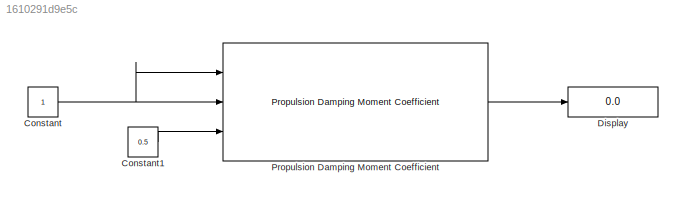
MODEL slx_1610291d9e5c
KIND model
BLOCK [Constant] Constant
BLOCK [Constant] Constant1
  Value = 0.5
BLOCK [Display] Display
  Decimation = 1
  Ports = [1]
BLOCK [Reference] Propulsion Damping Moment Coefficient  REF=rocket_angular_flight_library/Propulsion Damping Moment Coefficient
  Ports = [3, 1]
  SourceBlock = rocket_angular_flight_library/Propulsion Damping Moment Coefficient
  SourceType = SubSystem
LINE Constant1:1 -> Propulsion Damping Moment Coefficient:3
NET Constant:1 -> Propulsion Damping Moment Coefficient:1, Propulsion Damping Moment Coefficient:2
LINE Propulsion Damping Moment Coefficient:1 -> Display:1
note: NET lines group one-source signal fan-out (src -> all destinations, sorted); 1:1 wires keep LINE
